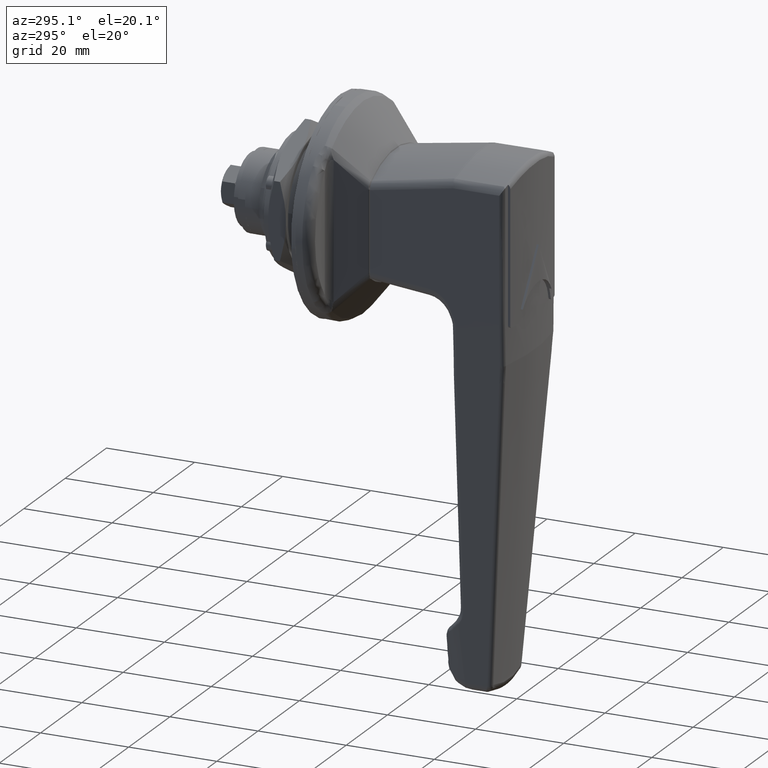
[diagram: clean part render]
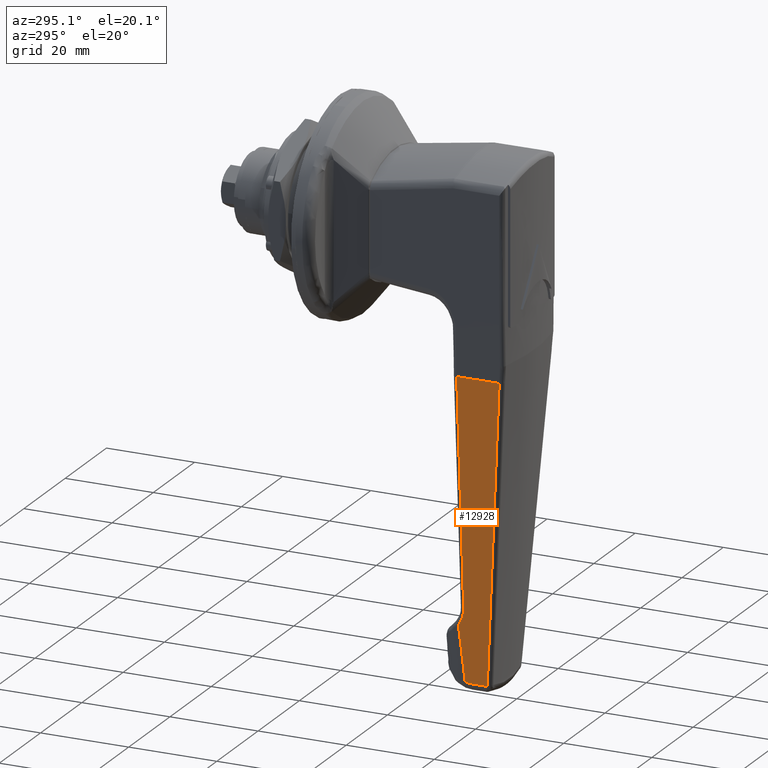
[diagram: same view with one face highlighted and labeled with its STEP entity id]
A machine part, auxiliary view. The second image highlights one B-rep face of the part: STEP entity #12928.
In plain terms, the highlighted face is a freeform B-spline surface patch.
Its self-contained STEP definition (entity closure, byte-faithful):
#6411=CARTESIAN_POINT('',(-30.691652699142050,8.428069406423719,-84.654899154318898));
#6412=VERTEX_POINT('',#6411);
#6512=CARTESIAN_POINT('',(-32.0,8.694515336385990,-80.579964853946592));
#6513=VERTEX_POINT('',#6512);
#6543=CARTESIAN_POINT('',(-32.0,8.694515336385958,-80.579964853946592));
#6544=CARTESIAN_POINT('',(-31.999999999999996,8.547558785182613,-82.827468845647729));
#6545=CARTESIAN_POINT('',(-30.691652699141919,8.428069406423600,-84.654899154318883));
#6553=(BOUNDED_CURVE()B_SPLINE_CURVE(2,(#6543,#6544,#6545),.UNSPECIFIED.,.F.,.U.)CURVE()GEOMETRIC_REPRESENTATION_ITEM()QUASI_UNIFORM_CURVE()RATIONAL_B_SPLINE_CURVE((1.0,0.952127418661638,1.0))REPRESENTATION_ITEM(''));
#6554=EDGE_CURVE('',#6513,#6412,#6553,.T.);
#6573=CARTESIAN_POINT('',(-32.0,12.073825860416800,-28.897928022205551));
#6574=VERTEX_POINT('',#6573);
#6596=CARTESIAN_POINT('',(-32.0,12.073825860416800,-28.897928022205551));
#6597=CARTESIAN_POINT('',(-32.0,8.694515336385990,-80.579964853946592));
#6598=QUASI_UNIFORM_CURVE('',1,(#6596,#6597),.UNSPECIFIED.,.F.,.U.);
#6599=EDGE_CURVE('',#6574,#6513,#6598,.T.);
#7240=CARTESIAN_POINT('',(-36.810766090021701,7.592145207199400,-97.439242275684194));
#7241=VERTEX_POINT('',#7240);
#7266=CARTESIAN_POINT('',(-36.852808266133650,7.607287943265200,-97.207654371133600));
#7267=VERTEX_POINT('',#7266);
#7281=CARTESIAN_POINT('',(-36.810766090021701,7.592145207199400,-97.439242275684194));
#7282=CARTESIAN_POINT('',(-36.833181102243060,7.597093489477402,-97.363564913356313));
#7283=CARTESIAN_POINT('',(-36.847095682572593,7.602142243966561,-97.286350962875090));
#7284=CARTESIAN_POINT('',(-36.852808266133650,7.607287943265200,-97.207654371133600));
#7285=QUASI_UNIFORM_CURVE('',3,(#7281,#7282,#7283,#7284),.UNSPECIFIED.,.F.,.U.);
#7286=EDGE_CURVE('',#7241,#7267,#7285,.T.);
#7544=CARTESIAN_POINT('',(-33.0,7.592145207199400,-97.439242275684194));
#7545=VERTEX_POINT('',#7544);
#7567=CARTESIAN_POINT('',(-33.0,7.592145207199400,-97.439242275684194));
#7568=CARTESIAN_POINT('',(-36.810766090021701,7.592145207199400,-97.439242275684194));
#7569=QUASI_UNIFORM_CURVE('',1,(#7567,#7568),.UNSPECIFIED.,.F.,.U.);
#7570=EDGE_CURVE('',#7545,#7241,#7569,.T.);
#7762=CARTESIAN_POINT('',(-31.857309073119598,7.601217072657381,-97.300500221234401));
#7763=VERTEX_POINT('',#7762);
#7788=CARTESIAN_POINT('',(-31.857309073119598,7.601217072657300,-97.300500221234401));
#7789=CARTESIAN_POINT('',(-32.044944046784941,7.598196386309217,-97.346697580721923));
#7790=CARTESIAN_POINT('',(-32.423050190774703,7.593675885573457,-97.415832596241273));
#7791=CARTESIAN_POINT('',(-32.806731902211453,7.592145207199400,-97.439242275684222));
#7792=CARTESIAN_POINT('',(-33.0,7.592145207199400,-97.439242275684194));
#7793=B_SPLINE_CURVE_WITH_KNOTS('',3,(#7788,#7789,#7790,#7791,#7792),.UNSPECIFIED.,.F.,.U.,(4,1,4),(0.0,0.500000000000000,1.0),.UNSPECIFIED.);
#7794=EDGE_CURVE('',#7763,#7545,#7793,.T.);
#8536=CARTESIAN_POINT('',(-41.636799778328999,12.073825860416800,-28.897928022205551));
#8537=VERTEX_POINT('',#8536);
#8807=CARTESIAN_POINT('',(-36.852808266133643,7.607287943265207,-97.207654371133742));
#8808=CARTESIAN_POINT('',(-39.346519064385504,9.853537082323253,-62.854276688755867));
#8809=CARTESIAN_POINT('',(-41.636799778329092,12.073825860416809,-28.897928022205640));
#8817=(BOUNDED_CURVE()B_SPLINE_CURVE(2,(#8807,#8808,#8809),.UNSPECIFIED.,.F.,.U.)CURVE()GEOMETRIC_REPRESENTATION_ITEM()QUASI_UNIFORM_CURVE()RATIONAL_B_SPLINE_CURVE((1.0,0.999266857087295,1.0))REPRESENTATION_ITEM(''));
#8818=EDGE_CURVE('',#7267,#8537,#8817,.T.);
#10308=CARTESIAN_POINT('',(-30.691652699142072,8.428069406423715,-84.654899154318883));
#10309=CARTESIAN_POINT('',(-30.794435132761372,8.355161217522113,-85.769932436212613));
#10310=CARTESIAN_POINT('',(-30.897217566380689,8.282253028620513,-86.884965718106358));
#10311=CARTESIAN_POINT('',(-31.0,8.209344839718909,-87.999999000000088));
#10312=CARTESIAN_POINT('',(-31.285769691039881,8.006635584031734,-91.100166073744859));
#10313=CARTESIAN_POINT('',(-31.571539382079720,7.803926328344559,-94.200333147489602));
#10314=CARTESIAN_POINT('',(-31.857309073119598,7.601217072657339,-97.300500221234344));
#10315=B_SPLINE_CURVE_WITH_KNOTS('',3,(#10308,#10309,#10310,#10311,#10312,#10313,#10314),.UNSPECIFIED.,.F.,.U.,(4,3,4),(0.419075080725773,0.457632119605489,0.564833639360107),.UNSPECIFIED.);
#10316=EDGE_CURVE('',#6412,#7763,#10315,.T.);
#12909=CARTESIAN_POINT('',(-42.183508929013684,7.368285435540812,-100.862878216131800));
#12910=CARTESIAN_POINT('',(-42.183508929013684,12.297685912560841,-25.474287792108200));
#12911=CARTESIAN_POINT('',(-30.144942374170480,7.368285435540812,-100.862878216131800));
#12912=CARTESIAN_POINT('',(-30.144942374170480,12.297685912560841,-25.474287792108200));
#12913=B_SPLINE_SURFACE_WITH_KNOTS('',1,1,((#12909,#12911),(#12910,#12912)),.UNSPECIFIED.,.F.,.F.,.U.,(2,2),(2,2),(0.0,75.549576803474096),(0.0,12.038566554843200),.UNSPECIFIED.);
#12914=ORIENTED_EDGE('',*,*,#6599,.T.);
#12915=ORIENTED_EDGE('',*,*,#6554,.T.);
#12916=ORIENTED_EDGE('',*,*,#10316,.T.);
#12917=ORIENTED_EDGE('',*,*,#7794,.T.);
#12918=ORIENTED_EDGE('',*,*,#7570,.T.);
#12919=ORIENTED_EDGE('',*,*,#7286,.T.);
#12920=ORIENTED_EDGE('',*,*,#8818,.T.);
#12921=CARTESIAN_POINT('',(-32.0,12.073825860416800,-28.897928022205551));
#12922=CARTESIAN_POINT('',(-41.636799778328999,12.073825860416800,-28.897928022205551));
#12923=QUASI_UNIFORM_CURVE('',1,(#12921,#12922),.UNSPECIFIED.,.F.,.U.);
#12924=EDGE_CURVE('',#6574,#8537,#12923,.T.);
#12925=ORIENTED_EDGE('',*,*,#12924,.F.);
#12926=EDGE_LOOP('',(#12914,#12915,#12916,#12917,#12918,#12919,#12920,#12925));
#12927=FACE_OUTER_BOUND('',#12926,.T.);
#12928=ADVANCED_FACE('',(#12927),#12913,.T.);